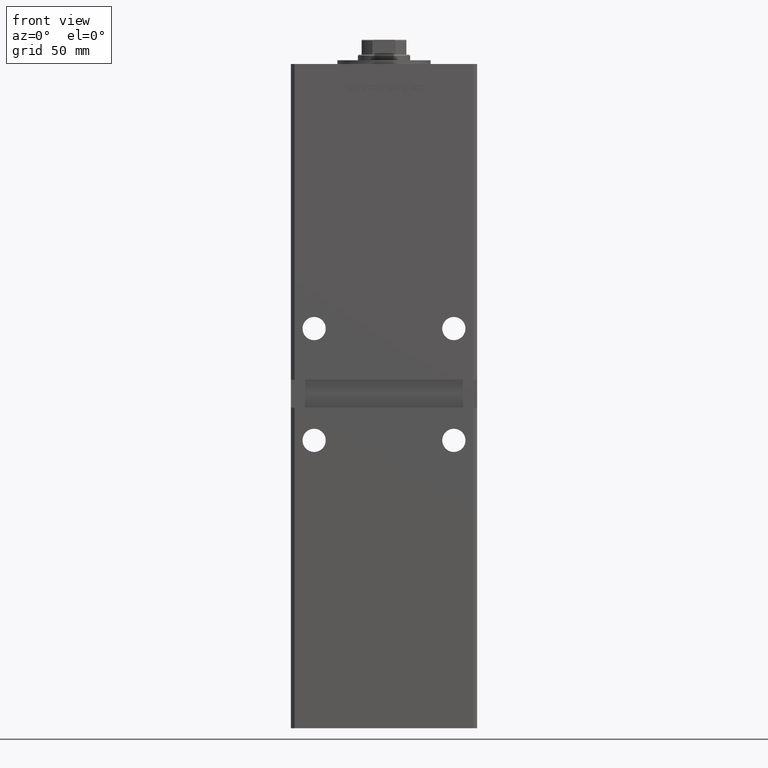
[diagram: clean part render]
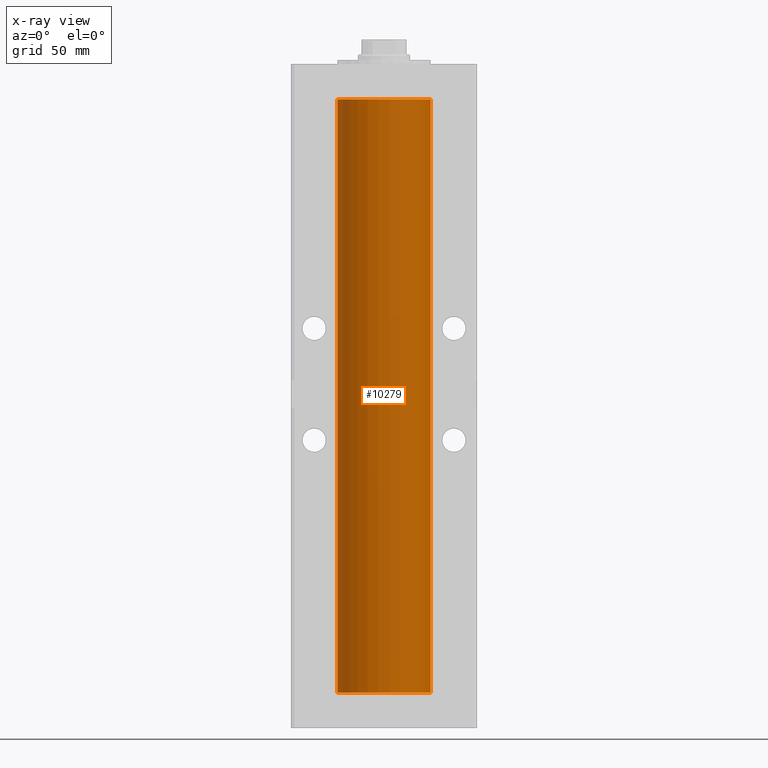
[diagram: x-ray — body ghosted, one internal face saturated and labeled with its STEP entity id]
A machine part, front view, then the same camera in x-ray: the body is ghosted and one INTERNAL B-rep face — a face not visible from any outside direction — is saturated and labeled: STEP entity #10279.
In plain terms, the highlighted cylindrical surface (partial cylindrical patch) has radius 25 mm, axis along (-0, -0, -1).
Its self-contained STEP definition (entity closure, byte-faithful):
#1334 = DIRECTION ( 'NONE',  ( -1.000000000000000000, 0.000000000000000000, 0.000000000000000000 ) ) ;
#1584 = CARTESIAN_POINT ( 'NONE',  ( 0.000000000000000000, 0.000000000000000000, 318.5000000000000000 ) ) ;
#1666 = VERTEX_POINT ( 'NONE', #14931 ) ;
#3445 = ORIENTED_EDGE ( 'NONE', *, *, #28236, .F. ) ;
#6375 = DIRECTION ( 'NONE',  ( 1.000000000000000000, 0.000000000000000000, 0.000000000000000000 ) ) ;
#6531 = CARTESIAN_POINT ( 'NONE',  ( -25.00000000000000000, 0.000000000000000000, 0.000000000000000000 ) ) ;
#6712 = ORIENTED_EDGE ( 'NONE', *, *, #28983, .T. ) ;
#7029 = DIRECTION ( 'NONE',  ( 1.000000000000000000, 0.000000000000000000, 0.000000000000000000 ) ) ;
#8916 = CARTESIAN_POINT ( 'NONE',  ( -25.00000000000000000, 0.000000000000000000, 318.5000000000000000 ) ) ;
#9248 = ORIENTED_EDGE ( 'NONE', *, *, #28769, .T. ) ;
#10279 = ADVANCED_FACE ( 'NONE', ( #50499 ), #21773, .F. ) ;
#11242 = VECTOR ( 'NONE', #37555, 1000.000000000000000 ) ;
#14931 = CARTESIAN_POINT ( 'NONE',  ( 25.00000000000000000, 3.061616997868383043E-15, 318.5000000000000000 ) ) ;
#15597 = EDGE_LOOP ( 'NONE', ( #9248, #6712, #3445, #38306 ) ) ;
#15855 = VERTEX_POINT ( 'NONE', #6531 ) ;
#18070 = CARTESIAN_POINT ( 'NONE',  ( 25.00000000000000000, 3.061616997868383043E-15, 318.5000000000000000 ) ) ;
#18667 = EDGE_CURVE ( 'NONE', #22573, #15855, #32725, .T. ) ;
#21773 = CYLINDRICAL_SURFACE ( 'NONE', #31687, 25.00000000000000000 ) ;
#22573 = VERTEX_POINT ( 'NONE', #8916 ) ;
#22889 = DIRECTION ( 'NONE',  ( -0.000000000000000000, 0.000000000000000000, 1.000000000000000000 ) ) ;
#26789 = CARTESIAN_POINT ( 'NONE',  ( 0.000000000000000000, 0.000000000000000000, 318.5000000000000000 ) ) ;
#28236 = EDGE_CURVE ( 'NONE', #15855, #39009, #44948, .T. ) ;
#28769 = EDGE_CURVE ( 'NONE', #22573, #1666, #41532, .T. ) ;
#28983 = EDGE_CURVE ( 'NONE', #1666, #39009, #30702, .T. ) ;
#30444 = DIRECTION ( 'NONE',  ( -0.000000000000000000, -0.000000000000000000, -1.000000000000000000 ) ) ;
#30702 = LINE ( 'NONE', #18070, #50990 ) ;
#31687 = AXIS2_PLACEMENT_3D ( 'NONE', #1584, #38175, #1334 ) ;
#31752 = CARTESIAN_POINT ( 'NONE',  ( 0.000000000000000000, 0.000000000000000000, 0.000000000000000000 ) ) ;
#32100 = AXIS2_PLACEMENT_3D ( 'NONE', #31752, #22889, #7029 ) ;
#32725 = LINE ( 'NONE', #37819, #11242 ) ;
#35523 = AXIS2_PLACEMENT_3D ( 'NONE', #26789, #43181, #6375 ) ;
#37555 = DIRECTION ( 'NONE',  ( -0.000000000000000000, -0.000000000000000000, -1.000000000000000000 ) ) ;
#37819 = CARTESIAN_POINT ( 'NONE',  ( -25.00000000000000000, 0.000000000000000000, 318.5000000000000000 ) ) ;
#38175 = DIRECTION ( 'NONE',  ( -0.000000000000000000, -0.000000000000000000, -1.000000000000000000 ) ) ;
#38306 = ORIENTED_EDGE ( 'NONE', *, *, #18667, .F. ) ;
#39009 = VERTEX_POINT ( 'NONE', #44867 ) ;
#41532 = CIRCLE ( 'NONE', #35523, 25.00000000000000000 ) ;
#43181 = DIRECTION ( 'NONE',  ( -0.000000000000000000, 0.000000000000000000, 1.000000000000000000 ) ) ;
#44867 = CARTESIAN_POINT ( 'NONE',  ( 25.00000000000000000, 3.061616997868383043E-15, 0.000000000000000000 ) ) ;
#44948 = CIRCLE ( 'NONE', #32100, 25.00000000000000000 ) ;
#50499 = FACE_OUTER_BOUND ( 'NONE', #15597, .T. ) ;
#50990 = VECTOR ( 'NONE', #30444, 1000.000000000000000 ) ;